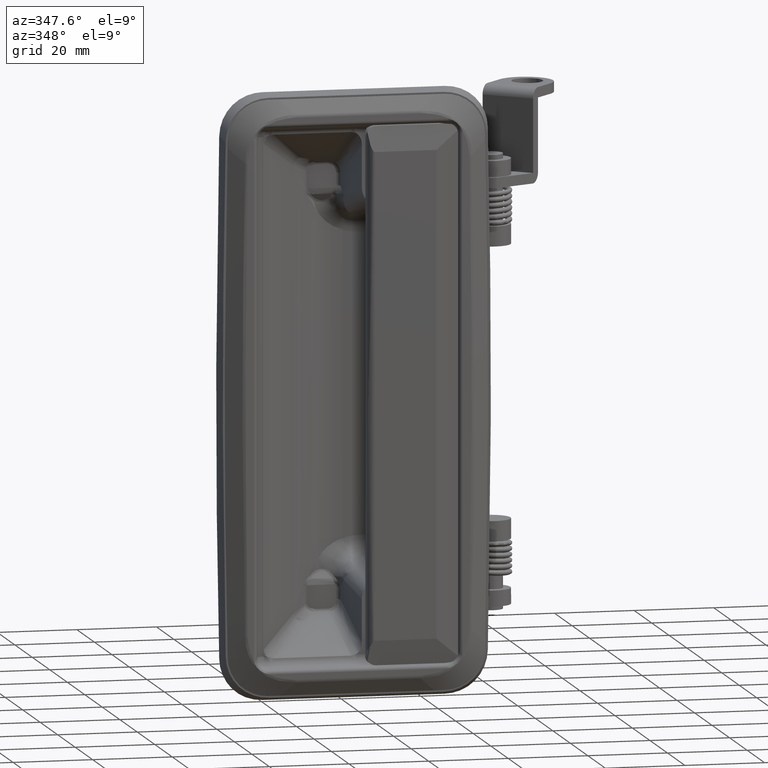
[diagram: clean part render]
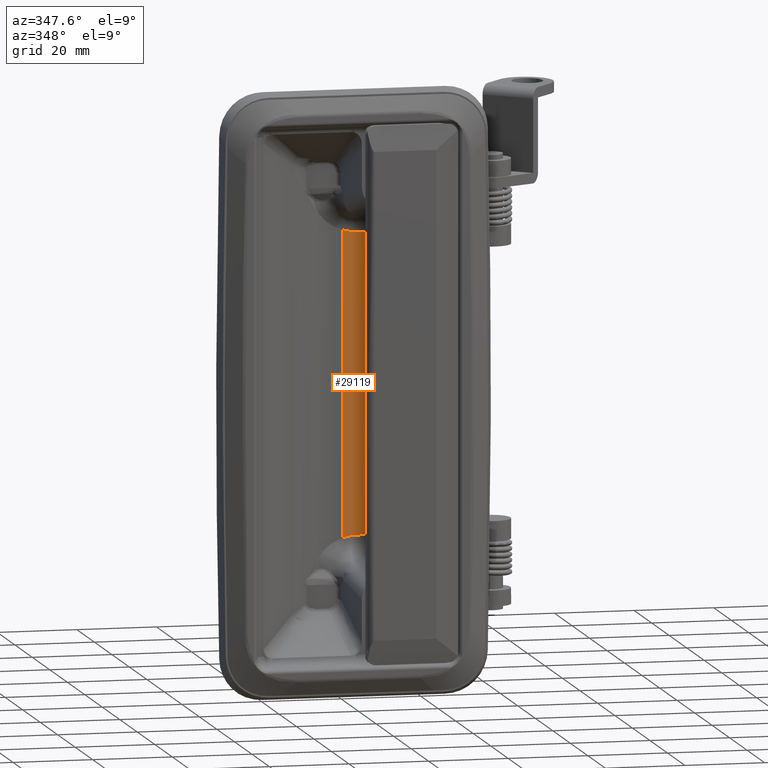
[diagram: same view with one face highlighted and labeled with its STEP entity id]
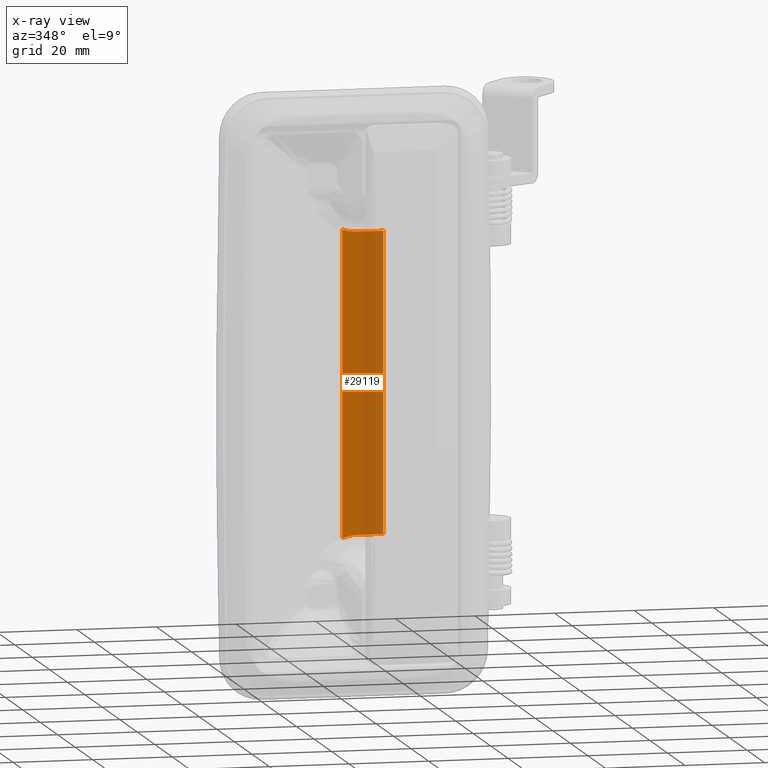
[diagram: x-ray of the same camera — body ghosted, the highlighted face saturated]
A machine part, auxiliary view. The second image highlights one B-rep face of the part: STEP entity #29119.
The next image is the same camera in x-ray: the body ghosted, the highlighted face saturated — about 44% of this face is hidden behind the body in this view.
In plain terms, the highlighted face is a freeform B-spline surface patch.
Its self-contained STEP definition (entity closure, byte-faithful):
#29054=CARTESIAN_POINT('',(11.173466503004050,20.317000000000000,-42.146761645955252));
#29055=CARTESIAN_POINT('',(11.173466503004050,20.317000000000000,42.146841824753807));
#29056=CARTESIAN_POINT('',(-0.060410776952901,20.317000000000000,-42.146761645955252));
#29057=CARTESIAN_POINT('',(-0.060410776952901,20.317000000000000,42.146841824753807));
#29058=B_SPLINE_SURFACE_WITH_KNOTS('',1,1,((#29054,#29056),(#29055,#29057)),.UNSPECIFIED.,.F.,.F.,.U.,(2,2),(2,2),(0.0,84.293603470709058),(0.0,11.233877279956950),.UNSPECIFIED.);
#29059=CARTESIAN_POINT('',(10.663299999999881,20.317000000000000,37.669368289839902));
#29060=VERTEX_POINT('',#29059);
#29061=CARTESIAN_POINT('',(3.950037344406020,20.317000000000000,37.669368289839902));
#29062=VERTEX_POINT('',#29061);
#29063=CARTESIAN_POINT('',(10.663299999999881,20.317000000000000,37.669368289839902));
#29064=CARTESIAN_POINT('',(3.950037344406020,20.317000000000000,37.669368289839902));
#29065=QUASI_UNIFORM_CURVE('',1,(#29063,#29064),.UNSPECIFIED.,.F.,.U.);
#29066=EDGE_CURVE('',#29060,#29062,#29065,.T.);
#29067=ORIENTED_EDGE('',*,*,#29066,.T.);
#29068=CARTESIAN_POINT('',(0.449755999999865,20.317000000000000,38.318796090525247));
#29069=VERTEX_POINT('',#29068);
#29070=CARTESIAN_POINT('',(3.950037344406020,20.317000000000000,37.669368289839902));
#29071=CARTESIAN_POINT('',(2.123053518902219,20.317000000000004,37.669368289839973));
#29072=CARTESIAN_POINT('',(0.449755999999768,20.317000000000000,38.318796090525311));
#29080=(BOUNDED_CURVE()B_SPLINE_CURVE(2,(#29070,#29071,#29072),.UNSPECIFIED.,.F.,.U.)CURVE()GEOMETRIC_REPRESENTATION_ITEM()QUASI_UNIFORM_CURVE()RATIONAL_B_SPLINE_CURVE((1.0,0.984381316992996,1.0))REPRESENTATION_ITEM(''));
#29081=EDGE_CURVE('',#29062,#29069,#29080,.T.);
#29082=ORIENTED_EDGE('',*,*,#29081,.T.);
#29083=CARTESIAN_POINT('',(0.449755999999865,20.317000000000000,-38.318717967305012));
#29084=VERTEX_POINT('',#29083);
#29085=CARTESIAN_POINT('',(0.449755999999865,20.317000000000000,-38.318717967305012));
#29086=CARTESIAN_POINT('',(0.449755999999865,20.317000000000000,38.318796090525247));
#29087=QUASI_UNIFORM_CURVE('',1,(#29085,#29086),.UNSPECIFIED.,.F.,.U.);
#29088=EDGE_CURVE('',#29084,#29069,#29087,.T.);
#29089=ORIENTED_EDGE('',*,*,#29088,.F.);
#29090=CARTESIAN_POINT('',(3.950024220916110,20.317000000000000,-37.669293555817099));
#29091=VERTEX_POINT('',#29090);
#29092=CARTESIAN_POINT('',(0.449755999999917,20.317000000000000,-38.318717967305069));
#29093=CARTESIAN_POINT('',(2.123047316912523,20.317000000000004,-37.669293555816971));
#29094=CARTESIAN_POINT('',(3.950024220916264,20.317000000000000,-37.669293555816999));
#29102=(BOUNDED_CURVE()B_SPLINE_CURVE(2,(#29092,#29093,#29094),.UNSPECIFIED.,.F.,.U.)CURVE()GEOMETRIC_REPRESENTATION_ITEM()QUASI_UNIFORM_CURVE()RATIONAL_B_SPLINE_CURVE((1.0,0.984381430074092,1.0))REPRESENTATION_ITEM(''));
#29103=EDGE_CURVE('',#29084,#29091,#29102,.T.);
#29104=ORIENTED_EDGE('',*,*,#29103,.T.);
#29105=CARTESIAN_POINT('',(10.663299999999881,20.317000000000000,-37.669293555817049));
#29106=VERTEX_POINT('',#29105);
#29107=CARTESIAN_POINT('',(3.950024220916110,20.317000000000000,-37.669293555817099));
#29108=CARTESIAN_POINT('',(10.663299999999881,20.317000000000000,-37.669293555817049));
#29109=QUASI_UNIFORM_CURVE('',1,(#29107,#29108),.UNSPECIFIED.,.F.,.U.);
#29110=EDGE_CURVE('',#29091,#29106,#29109,.T.);
#29111=ORIENTED_EDGE('',*,*,#29110,.T.);
#29112=CARTESIAN_POINT('',(10.663299999999881,20.317000000000000,-37.669293555817049));
#29113=CARTESIAN_POINT('',(10.663299999999881,20.317000000000000,37.669368289839902));
#29114=QUASI_UNIFORM_CURVE('',1,(#29112,#29113),.UNSPECIFIED.,.F.,.U.);
#29115=EDGE_CURVE('',#29106,#29060,#29114,.T.);
#29116=ORIENTED_EDGE('',*,*,#29115,.T.);
#29117=EDGE_LOOP('',(#29067,#29082,#29089,#29104,#29111,#29116));
#29118=FACE_OUTER_BOUND('',#29117,.T.);
#29119=ADVANCED_FACE('',(#29118),#29058,.T.);